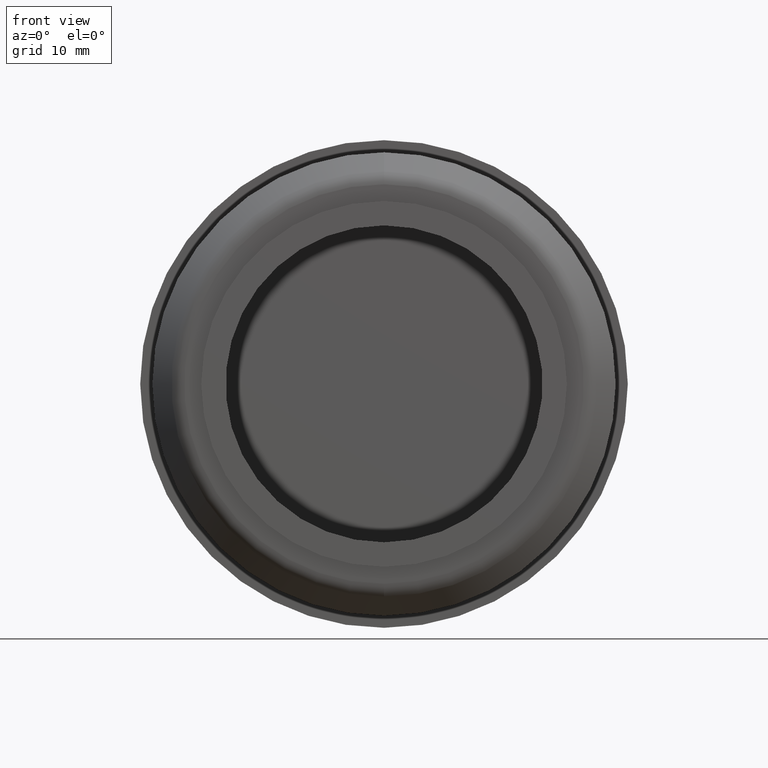
[diagram: clean part render]
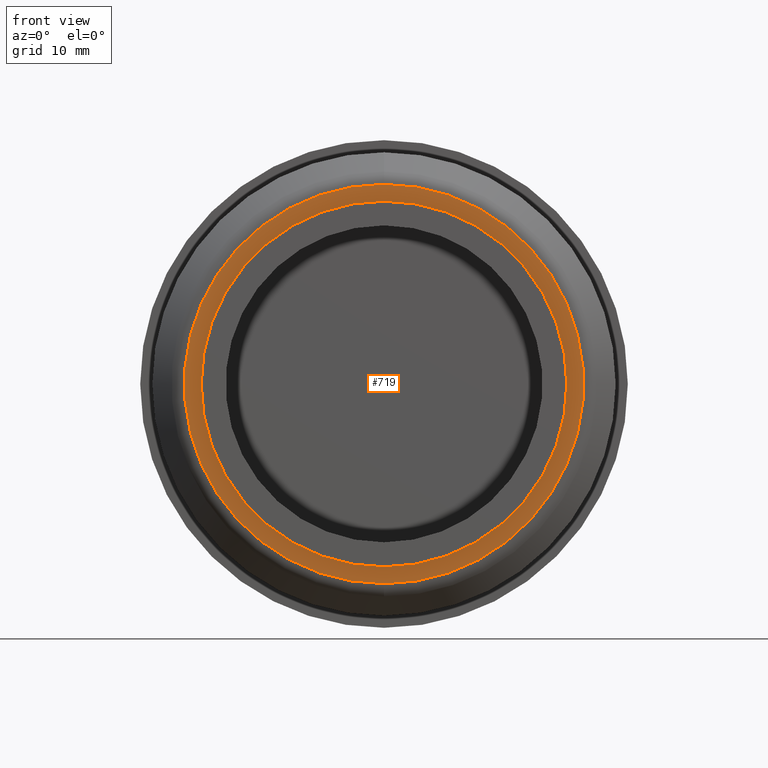
[diagram: same view with one face highlighted and labeled with its STEP entity id]
A machine part, front view. The second image highlights one B-rep face of the part: STEP entity #719.
In plain terms, the highlighted planar face has unit normal (0, -1, -0).
Its self-contained STEP definition (entity closure, byte-faithful):
#2 = CARTESIAN_POINT ( 'NONE',  ( 0.000000000000000000, 0.6000000000000033085, 0.000000000000000000 ) ) ;
#8 = CARTESIAN_POINT ( 'NONE',  ( 0.000000000000000000, 0.6000000000000033085, -16.37867965644035806 ) ) ;
#59 = FACE_BOUND ( 'NONE', #1134, .T. ) ;
#78 = CIRCLE ( 'NONE', #214, 15.00000000000000178 ) ;
#94 = ORIENTED_EDGE ( 'NONE', *, *, #1050, .T. ) ;
#104 = VERTEX_POINT ( 'NONE', #1122 ) ;
#135 = EDGE_CURVE ( 'NONE', #648, #549, #1103, .T. ) ;
#155 = AXIS2_PLACEMENT_3D ( 'NONE', #595, #671, #511 ) ;
#208 = ORIENTED_EDGE ( 'NONE', *, *, #135, .T. ) ;
#214 = AXIS2_PLACEMENT_3D ( 'NONE', #2, #732, #276 ) ;
#220 = DIRECTION ( 'NONE',  ( 0.000000000000000000, 0.000000000000000000, -1.000000000000000000 ) ) ;
#276 = DIRECTION ( 'NONE',  ( 0.000000000000000000, 0.000000000000000000, -1.000000000000000000 ) ) ;
#301 = AXIS2_PLACEMENT_3D ( 'NONE', #329, #1124, #1116 ) ;
#329 = CARTESIAN_POINT ( 'NONE',  ( 0.000000000000000000, 0.6000000000000033085, 0.000000000000000000 ) ) ;
#362 = CARTESIAN_POINT ( 'NONE',  ( 2.070756465769617820E-15, 0.6000000000000033085, 16.37867965644035806 ) ) ;
#455 = CARTESIAN_POINT ( 'NONE',  ( 17.00000000000000000, 0.6000000000000033085, 0.000000000000000000 ) ) ;
#460 = PLANE ( 'NONE',  #540 ) ;
#475 = ORIENTED_EDGE ( 'NONE', *, *, #1102, .F. ) ;
#511 = DIRECTION ( 'NONE',  ( 0.000000000000000000, 0.000000000000000000, -1.000000000000000000 ) ) ;
#540 = AXIS2_PLACEMENT_3D ( 'NONE', #455, #983, #880 ) ;
#546 = EDGE_CURVE ( 'NONE', #896, #104, #78, .T. ) ;
#549 = VERTEX_POINT ( 'NONE', #8 ) ;
#556 = EDGE_LOOP ( 'NONE', ( #94, #208 ) ) ;
#580 = DIRECTION ( 'NONE',  ( -0.000000000000000000, -1.000000000000000000, -0.000000000000000000 ) ) ;
#595 = CARTESIAN_POINT ( 'NONE',  ( 0.000000000000000000, 0.6000000000000033085, 0.000000000000000000 ) ) ;
#648 = VERTEX_POINT ( 'NONE', #362 ) ;
#671 = DIRECTION ( 'NONE',  ( -0.000000000000000000, -1.000000000000000000, -0.000000000000000000 ) ) ;
#689 = ORIENTED_EDGE ( 'NONE', *, *, #546, .F. ) ;
#719 = ADVANCED_FACE ( 'NONE', ( #1046, #59 ), #460, .T. ) ;
#732 = DIRECTION ( 'NONE',  ( -0.000000000000000000, -1.000000000000000000, -0.000000000000000000 ) ) ;
#742 = CIRCLE ( 'NONE', #155, 16.37867965644035806 ) ;
#758 = CARTESIAN_POINT ( 'NONE',  ( 0.000000000000000000, 0.6000000000000033085, 0.000000000000000000 ) ) ;
#794 = CIRCLE ( 'NONE', #301, 15.00000000000000178 ) ;
#809 = CARTESIAN_POINT ( 'NONE',  ( 1.836970198721029983E-15, 0.6000000000000033085, 15.00000000000000178 ) ) ;
#880 = DIRECTION ( 'NONE',  ( 0.000000000000000000, 0.000000000000000000, -1.000000000000000000 ) ) ;
#896 = VERTEX_POINT ( 'NONE', #809 ) ;
#983 = DIRECTION ( 'NONE',  ( 0.000000000000000000, -1.000000000000000000, -0.000000000000000000 ) ) ;
#1046 = FACE_OUTER_BOUND ( 'NONE', #556, .T. ) ;
#1050 = EDGE_CURVE ( 'NONE', #549, #648, #742, .T. ) ;
#1102 = EDGE_CURVE ( 'NONE', #104, #896, #794, .T. ) ;
#1103 = CIRCLE ( 'NONE', #1172, 16.37867965644035806 ) ;
#1116 = DIRECTION ( 'NONE',  ( 0.000000000000000000, 0.000000000000000000, -1.000000000000000000 ) ) ;
#1122 = CARTESIAN_POINT ( 'NONE',  ( 0.000000000000000000, 0.6000000000000033085, -15.00000000000000178 ) ) ;
#1124 = DIRECTION ( 'NONE',  ( -0.000000000000000000, -1.000000000000000000, -0.000000000000000000 ) ) ;
#1134 = EDGE_LOOP ( 'NONE', ( #475, #689 ) ) ;
#1172 = AXIS2_PLACEMENT_3D ( 'NONE', #758, #580, #220 ) ;